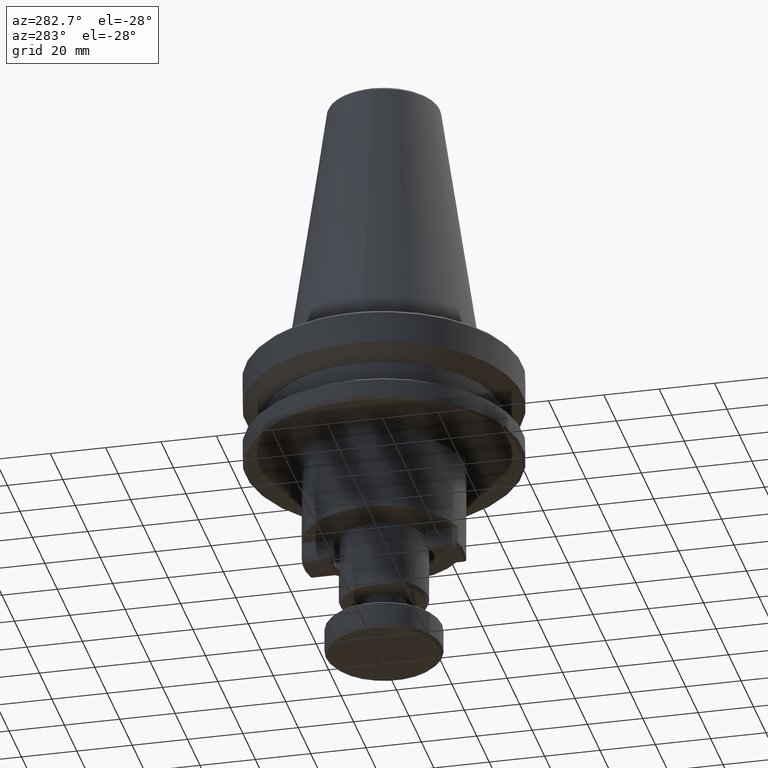
[diagram: clean part render]
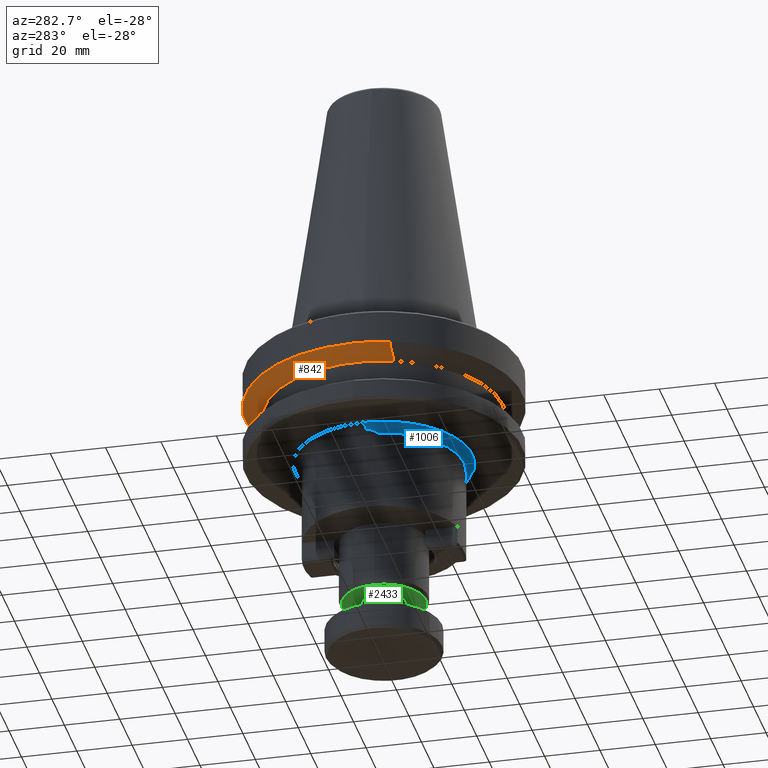
[diagram: same view with three faces highlighted in distinct colors, each labeled with its STEP entity id]
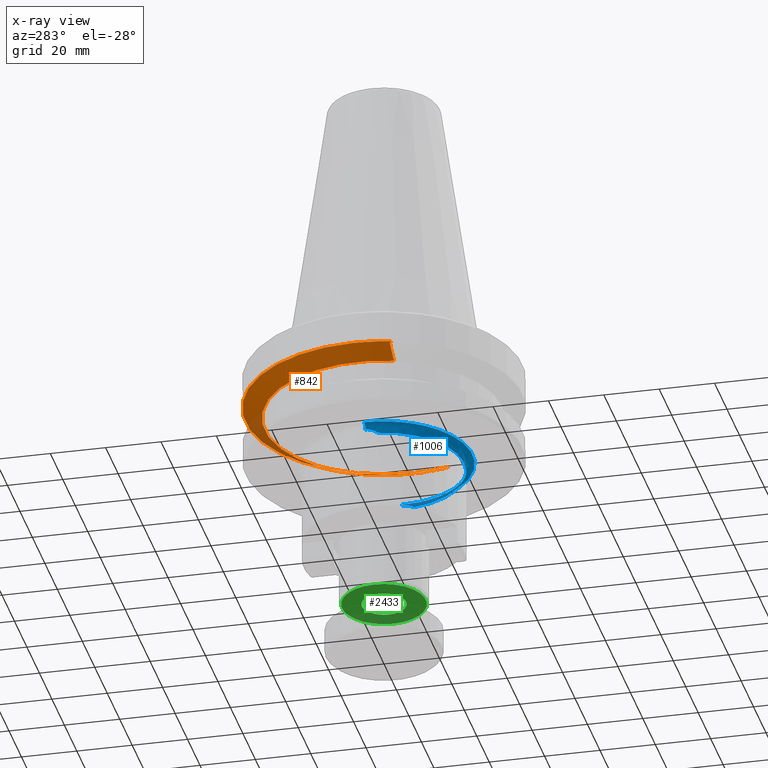
[diagram: x-ray of the same camera — body ghosted, the three highlighted faces saturated]
A machine part, auxiliary view with three faces highlighted in distinct colors.
The next image is the same camera in x-ray (body ghosted, the three faces saturated) — at least one of them is partly hidden behind the body in this view.
Their STEP definitions:

[orange] entity #842 — the highlighted conical surface has half-angle 60 deg.
#20 = VERTEX_POINT ( 'NONE', #1717 ) ;
#39 = CARTESIAN_POINT ( 'NONE',  ( -48.13724170527328300, -13.52057547074674000, -15.70022000298157400 ) ) ;
#56 = CARTESIAN_POINT ( 'NONE',  ( 47.74839958222990100, -12.84999999890712600, -16.01934084745118600 ) ) ;
#75 = CARTESIAN_POINT ( 'NONE',  ( 48.13724170481991400, -13.52057546674600800, -15.70022000315338100 ) ) ;
#140 = AXIS2_PLACEMENT_3D ( 'NONE', #245, #241, #238 ) ;
#151 = CARTESIAN_POINT ( 'NONE',  ( 41.11070423059565800, -12.85000000000000000, -19.70000000211766200 ) ) ;
#158 = EDGE_CURVE ( 'NONE', #20, #2554, #1040, .T. ) ;
#205 = CIRCLE ( 'NONE', #908, 50.00000000136428500 ) ;
#220 = FACE_OUTER_BOUND ( 'NONE', #1080, .T. ) ;
#238 = DIRECTION ( 'NONE',  ( 1.000000000000000000, 0.0000000000000000000, 0.0000000000000000000 ) ) ;
#241 = DIRECTION ( 'NONE',  ( -0.0000000000000000000, 0.0000000000000000000, -1.000000000000000000 ) ) ;
#245 = CARTESIAN_POINT ( 'NONE',  ( 0.0000000000000000000, 0.0000000000000000000, -15.70022000294437500 ) ) ;
#289 = DIRECTION ( 'NONE',  ( -0.0000000000000000000, 0.0000000000000000000, -1.000000000000000000 ) ) ;
#337 = CONICAL_SURFACE ( 'NONE', #729, 50.00000000315981200, 1.047197551361244100 ) ;
#388 = CARTESIAN_POINT ( 'NONE',  ( 0.0000000000000000000, 0.0000000000000000000, -15.70022000294437500 ) ) ;
#395 = DIRECTION ( 'NONE',  ( 1.000000000000000000, 0.0000000000000000000, 0.0000000000000000000 ) ) ;
#398 = DIRECTION ( 'NONE',  ( -0.0000000000000000000, 0.0000000000000000000, -1.000000000000000000 ) ) ;
#501 = CIRCLE ( 'NONE', #140, 50.00000000136428500 ) ;
#528 = CARTESIAN_POINT ( 'NONE',  ( -47.87811496442196800, -13.07369992174965400, -15.91345927725532800 ) ) ;
#571 = EDGE_CURVE ( 'NONE', #1989, #2554, #865, .T. ) ;
#591 = DIRECTION ( 'NONE',  ( 0.0000000000000000000, -3.469446951734357700E-017, 1.000000000000000000 ) ) ;
#597 = CARTESIAN_POINT ( 'NONE',  ( 47.74839958222990100, -12.84999999890712600, -16.01934084745118600 ) ) ;
#668 = CARTESIAN_POINT ( 'NONE',  ( 0.0000000000000000000, 1.387702452710672200E-016, -19.70000000147500100 ) ) ;
#729 = AXIS2_PLACEMENT_3D ( 'NONE', #779, #1638, #2661 ) ;
#751 = VERTEX_POINT ( 'NONE', #819 ) ;
#763 = ORIENTED_EDGE ( 'NONE', *, *, #2226, .F. ) ;
#764 = CARTESIAN_POINT ( 'NONE',  ( -48.13724170527328300, -13.52057547074674000, -15.70022000298157400 ) ) ;
#772 = CARTESIAN_POINT ( 'NONE',  ( 43.32651182240511600, -12.85000000000000100, -18.47896109119860600 ) ) ;
#779 = CARTESIAN_POINT ( 'NONE',  ( 0.0000000000000000000, 0.0000000000000000000, -15.70022000190772900 ) ) ;
#790 = EDGE_CURVE ( 'NONE', #2361, #1989, #1113, .T. ) ;
#819 = CARTESIAN_POINT ( 'NONE',  ( -50.00000000136428500, 6.123233995903842900E-015, -15.70022000294437500 ) ) ;
#842 = ADVANCED_FACE ( 'NONE', ( #220 ), #337, .T. ) ;
#865 = CIRCLE ( 'NONE', #2564, 43.07217782217728100 ) ;
#895 = ORIENTED_EDGE ( 'NONE', *, *, #2780, .T. ) ;
#908 = AXIS2_PLACEMENT_3D ( 'NONE', #388, #398, #395 ) ;
#913 = B_SPLINE_CURVE_WITH_KNOTS ( 'NONE', 3,
 ( #2542, #1906, #2353, #998 ),
 .UNSPECIFIED., .F., .F.,
 ( 4, 4 ),
 ( 6.648851357905168900E-013, 0.0008382766654574078100 ),
 .UNSPECIFIED. ) ;
#917 = EDGE_CURVE ( 'NONE', #2497, #2457, #205, .T. ) ;
#958 = ORIENTED_EDGE ( 'NONE', *, *, #917, .T. ) ;
#998 = CARTESIAN_POINT ( 'NONE',  ( 48.13724170481991400, -13.52057546674600800, -15.70022000315338100 ) ) ;
#1031 = EDGE_CURVE ( 'NONE', #751, #2497, #501, .T. ) ;
#1032 = CARTESIAN_POINT ( 'NONE',  ( 41.11070423059565800, -12.85000000000000000, -19.70000000211766200 ) ) ;
#1040 = B_SPLINE_CURVE_WITH_KNOTS ( 'NONE', 3,
 ( #2109, #2410, #1128, #2645 ),
 .UNSPECIFIED., .F., .F.,
 ( 4, 4 ),
 ( 0.0000000000000000000, 0.007589878223207121600 ),
 .UNSPECIFIED. ) ;
#1080 = EDGE_LOOP ( 'NONE', ( #763, #895, #2516, #958, #1126, #2789, #2822, #1565 ) ) ;
#1113 = B_SPLINE_CURVE_WITH_KNOTS ( 'NONE', 3,
 ( #597, #1663, #772, #1032 ),
 .UNSPECIFIED., .F., .F.,
 ( 4, 4 ),
 ( 0.0000000000000000000, 0.007589878219402798400 ),
 .UNSPECIFIED. ) ;
#1126 = ORIENTED_EDGE ( 'NONE', *, *, #1371, .F. ) ;
#1128 = CARTESIAN_POINT ( 'NONE',  ( -43.32651182023150900, -12.85000000000000100, -18.47896109240507900 ) ) ;
#1293 = CARTESIAN_POINT ( 'NONE',  ( 50.00000000136428500, 0.0000000000000000000, -15.70022000294437500 ) ) ;
#1371 = EDGE_CURVE ( 'NONE', #2361, #2457, #913, .T. ) ;
#1432 = CARTESIAN_POINT ( 'NONE',  ( -47.74839958571038800, -12.85000000031952200, -16.01934084529885600 ) ) ;
#1565 = ORIENTED_EDGE ( 'NONE', *, *, #158, .F. ) ;
#1638 = DIRECTION ( 'NONE',  ( 0.0000000000000000000, -3.469446951734357700E-017, 1.000000000000000000 ) ) ;
#1663 = CARTESIAN_POINT ( 'NONE',  ( 45.53865117335913500, -12.85000000000000100, -17.25130688045030800 ) ) ;
#1694 = CARTESIAN_POINT ( 'NONE',  ( 0.0000000000000000000, 0.0000000000000000000, -15.70022000294437500 ) ) ;
#1717 = CARTESIAN_POINT ( 'NONE',  ( -47.74839958571038800, -12.85000000031952200, -16.01934084529885600 ) ) ;
#1753 = CARTESIAN_POINT ( 'NONE',  ( -41.11070423068508000, -12.84999999971391700, -19.70000000211766200 ) ) ;
#1817 = B_SPLINE_CURVE_WITH_KNOTS ( 'NONE', 3,
 ( #764, #2351, #528, #1432 ),
 .UNSPECIFIED., .F., .F.,
 ( 4, 4 ),
 ( 3.808713805338900000E-013, 0.0008382766656210178300 ),
 .UNSPECIFIED. ) ;
#1906 = CARTESIAN_POINT ( 'NONE',  ( 47.87811496243685400, -13.07369991859118700, -15.91345927884056300 ) ) ;
#1937 = AXIS2_PLACEMENT_3D ( 'NONE', #1694, #289, #1939 ) ;
#1939 = DIRECTION ( 'NONE',  ( 1.000000000000000000, 5.329070518200752200E-015, 0.0000000000000000000 ) ) ;
#1989 = VERTEX_POINT ( 'NONE', #151 ) ;
#2008 = DIRECTION ( 'NONE',  ( 0.0000000000000000000, -1.000000000000000000, 0.0000000000000000000 ) ) ;
#2058 = VERTEX_POINT ( 'NONE', #39 ) ;
#2109 = CARTESIAN_POINT ( 'NONE',  ( -47.74839958571038800, -12.85000000031952200, -16.01934084529885600 ) ) ;
#2204 = CIRCLE ( 'NONE', #1937, 50.00000000136428500 ) ;
#2226 = EDGE_CURVE ( 'NONE', #2058, #20, #1817, .T. ) ;
#2351 = CARTESIAN_POINT ( 'NONE',  ( -48.00772818919207200, -13.29722367227471800, -15.80707908788136800 ) ) ;
#2353 = CARTESIAN_POINT ( 'NONE',  ( 48.00772818738074200, -13.29722366878323600, -15.80707908942653700 ) ) ;
#2361 = VERTEX_POINT ( 'NONE', #56 ) ;
#2410 = CARTESIAN_POINT ( 'NONE',  ( -45.53865117548432600, -12.85000000000000100, -17.25130687927110500 ) ) ;
#2457 = VERTEX_POINT ( 'NONE', #75 ) ;
#2497 = VERTEX_POINT ( 'NONE', #1293 ) ;
#2516 = ORIENTED_EDGE ( 'NONE', *, *, #1031, .T. ) ;
#2542 = CARTESIAN_POINT ( 'NONE',  ( 47.74839958222990100, -12.84999999890712600, -16.01934084745118600 ) ) ;
#2554 = VERTEX_POINT ( 'NONE', #1753 ) ;
#2564 = AXIS2_PLACEMENT_3D ( 'NONE', #668, #591, #2008 ) ;
#2645 = CARTESIAN_POINT ( 'NONE',  ( -41.11070423068508000, -12.84999999971391700, -19.70000000211766200 ) ) ;
#2661 = DIRECTION ( 'NONE',  ( 0.0000000000000000000, -1.000000000000000000, 0.0000000000000000000 ) ) ;
#2780 = EDGE_CURVE ( 'NONE', #2058, #751, #2204, .T. ) ;
#2789 = ORIENTED_EDGE ( 'NONE', *, *, #790, .T. ) ;
#2822 = ORIENTED_EDGE ( 'NONE', *, *, #571, .T. ) ;

[blue] entity #1006 — the highlighted face is a freeform B-spline surface patch.
#59 = EDGE_LOOP ( 'NONE', ( #2392, #2235, #2794, #296, #742, #914 ) ) ;
#85 = CARTESIAN_POINT ( 'NONE',  ( -28.67490193900216900, -4.330126877431133000, -40.99999988860468400 ) ) ;
#244 = VERTEX_POINT ( 'NONE', #1927 ) ;
#263 = CARTESIAN_POINT ( 'NONE',  ( 30.93055105038361700, 0.0000000000000000000, -38.00000000060403900 ) ) ;
#267 = CARTESIAN_POINT ( 'NONE',  ( 28.67490196127174000, -4.330126731693865400, -40.99999999990048800 ) ) ;
#271 = CARTESIAN_POINT ( 'NONE',  ( 28.72179420890765700, -4.019597694794323500, -40.75552158689701800 ) ) ;
#274 = CARTESIAN_POINT ( 'NONE',  ( 28.79564641051025800, -3.692439655148557000, -40.54066785412068400 ) ) ;
#275 = CARTESIAN_POINT ( 'NONE',  ( 28.95551459653729200, -3.017730545564983700, -40.17220002005529300 ) ) ;
#278 = CARTESIAN_POINT ( 'NONE',  ( 29.04238225112954600, -2.668147256634117300, -40.01693841582345400 ) ) ;
#279 = CARTESIAN_POINT ( 'NONE',  ( 29.20160652723932100, -1.938896873886548600, -39.76280650420793000 ) ) ;
#280 = CARTESIAN_POINT ( 'NONE',  ( 29.27378637798476300, -1.557903265596503100, -39.66443930361926800 ) ) ;
#282 = CARTESIAN_POINT ( 'NONE',  ( 29.37362876209346800, -0.7893167121931973200, -39.53372899273121300 ) ) ;
#283 = CARTESIAN_POINT ( 'NONE',  ( 29.40192378807008900, -0.3984391114165648000, -39.49999999999999300 ) ) ;
#288 = CARTESIAN_POINT ( 'NONE',  ( 29.40192378681016200, -4.286263797015736100E-016, -39.50000000047160100 ) ) ;
#296 = ORIENTED_EDGE ( 'NONE', *, *, #708, .T. ) ;
#319 = CARTESIAN_POINT ( 'NONE',  ( 31.99999999900000300, 0.0000000000000000000, -38.00000000000000000 ) ) ;
#320 = CARTESIAN_POINT ( 'NONE',  ( 31.99999999900000000, -63.99999999699999600, -38.00000000000000700 ) ) ;
#323 = CARTESIAN_POINT ( 'NONE',  ( -31.99999999900000000, -63.99999999699999600, -38.00000000000000700 ) ) ;
#325 = CARTESIAN_POINT ( 'NONE',  ( -31.99999999900000300, 0.0000000000000000000, -38.00000000000000000 ) ) ;
#327 = CARTESIAN_POINT ( 'NONE',  ( 30.22951898499999900, 0.0000000000000000000, -38.00000000099998900 ) ) ;
#329 = CARTESIAN_POINT ( 'NONE',  ( 30.22951898499999900, -60.45903797199999000, -38.00000000099999700 ) ) ;
#330 = CARTESIAN_POINT ( 'NONE',  ( -30.22951898499999900, -60.45903797199999000, -38.00000000099999700 ) ) ;
#336 = CARTESIAN_POINT ( 'NONE',  ( -30.22951898499999900, 0.0000000000000000000, -38.00000000099998900 ) ) ;
#338 = CARTESIAN_POINT ( 'NONE',  ( 28.98513317599999100, 0.0000000000000000000, -39.25758612600000000 ) ) ;
#346 = CARTESIAN_POINT ( 'NONE',  ( 28.98513317599999400, -57.97026635299999200, -39.25758612600001400 ) ) ;
#349 = CARTESIAN_POINT ( 'NONE',  ( -28.98513317599999400, -57.97026635299999200, -39.25758612600001400 ) ) ;
#355 = CARTESIAN_POINT ( 'NONE',  ( -28.98513317599999100, 0.0000000000000000000, -39.25758612600000000 ) ) ;
#356 = CARTESIAN_POINT ( 'NONE',  ( 29.00010761900000100, 0.0000000000000000000, -41.02541073200001200 ) ) ;
#359 = CARTESIAN_POINT ( 'NONE',  ( 29.00010761899999800, -58.00021523900001300, -41.02541073200000500 ) ) ;
#361 = CARTESIAN_POINT ( 'NONE',  ( -29.00010761900000100, 0.0000000000000000000, -41.02541073200001200 ) ) ;
#393 = CARTESIAN_POINT ( 'NONE',  ( -28.67490193900216900, -4.330126877431133000, -40.99999988860468400 ) ) ;
#404 = CARTESIAN_POINT ( 'NONE',  ( -29.40192378833988600, -7.535041727427849300E-008, -39.49999999992881100 ) ) ;
#408 = CARTESIAN_POINT ( 'NONE',  ( -29.96500746771830800, -1.151902097558945500E-007, -38.52471045805528100 ) ) ;
#410 = CARTESIAN_POINT ( 'NONE',  ( -29.40192378457536300, -0.3981437725173673200, -39.50000000428578100 ) ) ;
#418 = CARTESIAN_POINT ( 'NONE',  ( -29.20204313932112000, -1.936843778950816200, -39.76212873057128400 ) ) ;
#425 = VERTEX_POINT ( 'NONE', #1377 ) ;
#429 = FACE_OUTER_BOUND ( 'NONE', #59, .T. ) ;
#431 = CARTESIAN_POINT ( 'NONE',  ( -29.04221046557049800, -2.668987352382329100, -40.01719354135290300 ) ) ;
#432 = CARTESIAN_POINT ( 'NONE',  ( -29.00010761899999800, -58.00021523900001300, -41.02541073200000500 ) ) ;
#500 = CARTESIAN_POINT ( 'NONE',  ( -30.93055105086838100, -1.189019114122236500E-007, -38.00000000060403900 ) ) ;
#538 = CARTESIAN_POINT ( 'NONE',  ( -28.95442599288259800, -3.022175981628053300, -40.17432713460842600 ) ) ;
#576 =( BOUNDED_CURVE ( )  B_SPLINE_CURVE ( 3, ( #838, #2444, #263, #1532 ),
 .UNSPECIFIED., .F., .T. ) 
 B_SPLINE_CURVE_WITH_KNOTS ( ( 4, 4 ),
 ( 0.0000000000000000000, 1.000000000000000000 ),
 .UNSPECIFIED. ) 
 CURVE ( )  GEOMETRIC_REPRESENTATION_ITEM ( )  RATIONAL_B_SPLINE_CURVE ( ( 0.8306423797577713300, 0.7915245138130843100, 0.8335031546158255800, 0.9565783021659950400 ) ) 
 REPRESENTATION_ITEM ( '' )  );
#598 = CARTESIAN_POINT ( 'NONE',  ( -29.27295224268976900, -1.562764836142472900, -39.66557074235989700 ) ) ;
#675 = CARTESIAN_POINT ( 'NONE',  ( -29.37308693203642200, -0.7950259888307243900, -39.53439945964068200 ) ) ;
#708 = EDGE_CURVE ( 'NONE', #2197, #244, #2399, .T. ) ;
#742 = ORIENTED_EDGE ( 'NONE', *, *, #1351, .T. ) ;
#820 = CARTESIAN_POINT ( 'NONE',  ( -28.79472453081928400, -3.696481161626994400, -40.54317938111132200 ) ) ;
#838 = CARTESIAN_POINT ( 'NONE',  ( 29.40192378681016200, -4.286263797015736100E-016, -39.50000000047160100 ) ) ;
#857 = DIRECTION ( 'NONE',  ( 0.0000000000000000000, -1.196361017914266600E-016, -1.000000000000000000 ) ) ;
#867 = CIRCLE ( 'NONE', #896, 28.99999999951868200 ) ;
#884 = CARTESIAN_POINT ( 'NONE',  ( -29.40192378833988200, -7.535041727427849300E-008, -39.49999999992881100 ) ) ;
#896 = AXIS2_PLACEMENT_3D ( 'NONE', #2260, #857, #1524 ) ;
#904 = EDGE_CURVE ( 'NONE', #1185, #1693, #945, .T. ) ;
#914 = ORIENTED_EDGE ( 'NONE', *, *, #904, .F. ) ;
#945 = B_SPLINE_CURVE_WITH_KNOTS ( 'NONE', 3,
 ( #393, #1175, #820, #538, #431, #418, #598, #675, #410, #404 ),
 .UNSPECIFIED., .F., .F.,
 ( 4, 2, 2, 2, 4 ),
 ( 1.841616308309875400E-010, 0.001177310375087478900, 0.002354620566013326900, 0.003531930756939174900, 0.004709240947865023400 ),
 .UNSPECIFIED. ) ;
#1006 = ADVANCED_FACE ( 'NONE', ( #429 ), #1701, .F. ) ;
#1027 = EDGE_CURVE ( 'NONE', #425, #1965, #2137, .T. ) ;
#1175 = CARTESIAN_POINT ( 'NONE',  ( -28.72180762591607100, -4.019508740999623500, -40.75545152728416600 ) ) ;
#1185 = VERTEX_POINT ( 'NONE', #85 ) ;
#1206 = CARTESIAN_POINT ( 'NONE',  ( 31.99999999900000300, -63.99999999699999600, -38.00000000000000700 ) ) ;
#1213 = CARTESIAN_POINT ( 'NONE',  ( -31.99999999900000300, -63.99999999699999600, -38.00000000000000700 ) ) ;
#1302 = EDGE_CURVE ( 'NONE', #425, #2197, #576, .T. ) ;
#1333 = EDGE_CURVE ( 'NONE', #1965, #1185, #867, .T. ) ;
#1351 = EDGE_CURVE ( 'NONE', #244, #1693, #1876, .T. ) ;
#1377 = CARTESIAN_POINT ( 'NONE',  ( 29.40192378681016200, -4.286263797015736100E-016, -39.50000000047160100 ) ) ;
#1467 = CARTESIAN_POINT ( 'NONE',  ( -32.00000000184532900, -2.050217360986863200E-008, -37.99999999999999300 ) ) ;
#1524 = DIRECTION ( 'NONE',  ( 0.0000000000000000000, 1.000000000000000000, 0.0000000000000000000 ) ) ;
#1532 = CARTESIAN_POINT ( 'NONE',  ( 32.00000000184533600, 0.0000000000000000000, -38.00000000000000000 ) ) ;
#1540 = CARTESIAN_POINT ( 'NONE',  ( 28.67490196127174000, -4.330126731693865400, -40.99999999990048800 ) ) ;
#1693 = VERTEX_POINT ( 'NONE', #2893 ) ;
#1701 =( BOUNDED_SURFACE ( )  B_SPLINE_SURFACE ( 3, 3, ( 
 ( #361, #432, #359, #356 ),
 ( #355, #349, #346, #338 ),
 ( #336, #330, #329, #327 ),
 ( #325, #323, #320, #319 ) ),
 .UNSPECIFIED., .F., .F., .F. ) 
 B_SPLINE_SURFACE_WITH_KNOTS ( ( 4, 4 ),
 ( 4, 4 ),
 ( 0.05789915406864511900, 0.9368585430000020400 ),
 ( 0.0000000000000000000, 1.000000000000000000 ),
 .UNSPECIFIED. ) 
 GEOMETRIC_REPRESENTATION_ITEM ( )  RATIONAL_B_SPLINE_SURFACE ( (
 ( 0.9599605786288650800, 0.3199868595429551400, 0.3199868595429551400, 0.9599605786288650800),
 ( 0.7698014946041833500, 0.2566004982013949700, 0.2566004982013949700, 0.7698014946041833500),
 ( 0.7686740691165601100, 0.2562246897055200400, 0.2562246897055200400, 0.7686740691165601100),
 ( 0.9565783021659950400, 0.3188594340553310100, 0.3188594340553310100, 0.9565783021659950400) ) ) 
 REPRESENTATION_ITEM ( '' )  SURFACE ( )  );
#1876 =( BOUNDED_CURVE ( )  B_SPLINE_CURVE ( 3, ( #1898, #500, #408, #884 ),
 .UNSPECIFIED., .F., .T. ) 
 B_SPLINE_CURVE_WITH_KNOTS ( ( 4, 4 ),
 ( 0.0000000000000000000, 1.000000000000000000 ),
 .UNSPECIFIED. ) 
 CURVE ( )  GEOMETRIC_REPRESENTATION_ITEM ( )  RATIONAL_B_SPLINE_CURVE ( ( 0.9565782984887575300, 0.8335031514603181700, 0.7915245108034995000, 0.8306423765183016400 ) ) 
 REPRESENTATION_ITEM ( '' )  );
#1898 = CARTESIAN_POINT ( 'NONE',  ( -32.00000000184532900, -2.050217360986863200E-008, -37.99999999999999300 ) ) ;
#1927 = CARTESIAN_POINT ( 'NONE',  ( -32.00000000184532900, -2.050217360986863200E-008, -37.99999999999999300 ) ) ;
#1965 = VERTEX_POINT ( 'NONE', #1540 ) ;
#2137 = B_SPLINE_CURVE_WITH_KNOTS ( 'NONE', 3,
 ( #288, #283, #282, #280, #279, #278, #275, #274, #271, #267 ),
 .UNSPECIFIED., .F., .F.,
 ( 4, 2, 2, 2, 4 ),
 ( 0.0000000000000000000, 0.001178016245088588400, 0.002356032490177176700, 0.003534048735265764600, 0.004712064980354352600 ),
 .UNSPECIFIED. ) ;
#2156 = CARTESIAN_POINT ( 'NONE',  ( 32.00000000184533600, 0.0000000000000000000, -38.00000000000000000 ) ) ;
#2197 = VERTEX_POINT ( 'NONE', #2156 ) ;
#2235 = ORIENTED_EDGE ( 'NONE', *, *, #1027, .F. ) ;
#2260 = CARTESIAN_POINT ( 'NONE',  ( 0.0000000000000000000, 0.0000000000000000000, -40.99999977383654200 ) ) ;
#2392 = ORIENTED_EDGE ( 'NONE', *, *, #1333, .F. ) ;
#2399 =( BOUNDED_CURVE ( )  B_SPLINE_CURVE ( 3, ( #2726, #1206, #1213, #1467 ),
 .UNSPECIFIED., .F., .F. ) 
 B_SPLINE_CURVE_WITH_KNOTS ( ( 4, 4 ),
 ( 0.0000000000000000000, 1.000000000000000000 ),
 .UNSPECIFIED. ) 
 CURVE ( )  GEOMETRIC_REPRESENTATION_ITEM ( )  RATIONAL_B_SPLINE_CURVE ( ( 0.9565783021659950400, 0.3188594340553310100, 0.3188594340553310100, 0.9565783021659950400 ) ) 
 REPRESENTATION_ITEM ( '' )  );
#2444 = CARTESIAN_POINT ( 'NONE',  ( 29.96500746691516100, 0.0000000000000000000, -38.52471045849174700 ) ) ;
#2726 = CARTESIAN_POINT ( 'NONE',  ( 32.00000000184533600, 0.0000000000000000000, -38.00000000000000000 ) ) ;
#2794 = ORIENTED_EDGE ( 'NONE', *, *, #1302, .T. ) ;
#2893 = CARTESIAN_POINT ( 'NONE',  ( -29.40192378833988600, -7.535041727427849300E-008, -39.49999999992881100 ) ) ;

[green] entity #2433 — the highlighted planar face has unit normal (0, 0, -1).
#2 = EDGE_CURVE ( 'NONE', #254, #1537, #2365, .T. ) ;
#7 = CIRCLE ( 'NONE', #256, 15.14999999999995200 ) ;
#71 = EDGE_CURVE ( 'NONE', #2004, #2346, #932, .T. ) ;
#254 = VERTEX_POINT ( 'NONE', #2368 ) ;
#256 = AXIS2_PLACEMENT_3D ( 'NONE', #2023, #2559, #2557 ) ;
#311 = ORIENTED_EDGE ( 'NONE', *, *, #444, .F. ) ;
#347 = DIRECTION ( 'NONE',  ( -1.000000000000000000, 0.0000000000000000000, -0.0000000000000000000 ) ) ;
#444 = EDGE_CURVE ( 'NONE', #1537, #254, #506, .T. ) ;
#506 = CIRCLE ( 'NONE', #1566, 8.000000000000000000 ) ;
#592 = DIRECTION ( 'NONE',  ( 0.0000000000000000000, 0.0000000000000000000, -1.000000000000000000 ) ) ;
#614 = AXIS2_PLACEMENT_3D ( 'NONE', #1207, #1625, #944 ) ;
#693 = DIRECTION ( 'NONE',  ( 0.0000000000000000000, 0.0000000000000000000, -1.000000000000000000 ) ) ;
#771 = ORIENTED_EDGE ( 'NONE', *, *, #71, .F. ) ;
#852 = EDGE_CURVE ( 'NONE', #2346, #2004, #7, .T. ) ;
#932 = CIRCLE ( 'NONE', #614, 15.14999999999995200 ) ;
#944 = DIRECTION ( 'NONE',  ( 1.000000000000000000, 0.0000000000000000000, 0.0000000000000000000 ) ) ;
#1165 = DIRECTION ( 'NONE',  ( -1.000000000000000000, 0.0000000000000000000, 0.0000000000000000000 ) ) ;
#1207 = CARTESIAN_POINT ( 'NONE',  ( 0.0000000000000000000, 0.0000000000000000000, -94.00000000000008500 ) ) ;
#1328 = EDGE_LOOP ( 'NONE', ( #2891, #311 ) ) ;
#1358 = ORIENTED_EDGE ( 'NONE', *, *, #852, .F. ) ;
#1496 = PLANE ( 'NONE',  #2331 ) ;
#1537 = VERTEX_POINT ( 'NONE', #1827 ) ;
#1566 = AXIS2_PLACEMENT_3D ( 'NONE', #1892, #592, #1165 ) ;
#1625 = DIRECTION ( 'NONE',  ( 0.0000000000000000000, -0.0000000000000000000, 1.000000000000000000 ) ) ;
#1697 = CARTESIAN_POINT ( 'NONE',  ( -15.14999999999995200, 1.907387389671999600E-015, -94.00000000000008500 ) ) ;
#1738 = CARTESIAN_POINT ( 'NONE',  ( 15.33179999999999900, -15.33179999999999900, -94.00000000000000000 ) ) ;
#1769 = DIRECTION ( 'NONE',  ( -1.000000000000000000, 0.0000000000000000000, 0.0000000000000000000 ) ) ;
#1775 = CARTESIAN_POINT ( 'NONE',  ( 15.14999999999995200, 0.0000000000000000000, -94.00000000000008500 ) ) ;
#1827 = CARTESIAN_POINT ( 'NONE',  ( -4.623297528496055800, -6.528791615835361400, -94.00000000000000000 ) ) ;
#1833 = FACE_BOUND ( 'NONE', #1328, .T. ) ;
#1892 = CARTESIAN_POINT ( 'NONE',  ( 5.764477608108637900E-015, 8.140309561632927900E-015, -94.00000000000000000 ) ) ;
#1913 = FACE_OUTER_BOUND ( 'NONE', #2649, .T. ) ;
#1933 = CARTESIAN_POINT ( 'NONE',  ( 5.764477608108637900E-015, 8.140309561632927900E-015, -94.00000000000000000 ) ) ;
#1999 = AXIS2_PLACEMENT_3D ( 'NONE', #1933, #2281, #1769 ) ;
#2004 = VERTEX_POINT ( 'NONE', #1775 ) ;
#2023 = CARTESIAN_POINT ( 'NONE',  ( 0.0000000000000000000, 0.0000000000000000000, -94.00000000000008500 ) ) ;
#2281 = DIRECTION ( 'NONE',  ( 0.0000000000000000000, 0.0000000000000000000, -1.000000000000000000 ) ) ;
#2331 = AXIS2_PLACEMENT_3D ( 'NONE', #1738, #693, #347 ) ;
#2346 = VERTEX_POINT ( 'NONE', #1697 ) ;
#2365 = CIRCLE ( 'NONE', #1999, 8.000000000000000000 ) ;
#2368 = CARTESIAN_POINT ( 'NONE',  ( 4.623297528496069100, 6.528791615835376500, -94.00000000000000000 ) ) ;
#2433 = ADVANCED_FACE ( 'NONE', ( #1833, #1913 ), #1496, .T. ) ;
#2557 = DIRECTION ( 'NONE',  ( 1.000000000000000000, 0.0000000000000000000, 0.0000000000000000000 ) ) ;
#2559 = DIRECTION ( 'NONE',  ( 0.0000000000000000000, -0.0000000000000000000, 1.000000000000000000 ) ) ;
#2649 = EDGE_LOOP ( 'NONE', ( #771, #1358 ) ) ;
#2891 = ORIENTED_EDGE ( 'NONE', *, *, #2, .F. ) ;